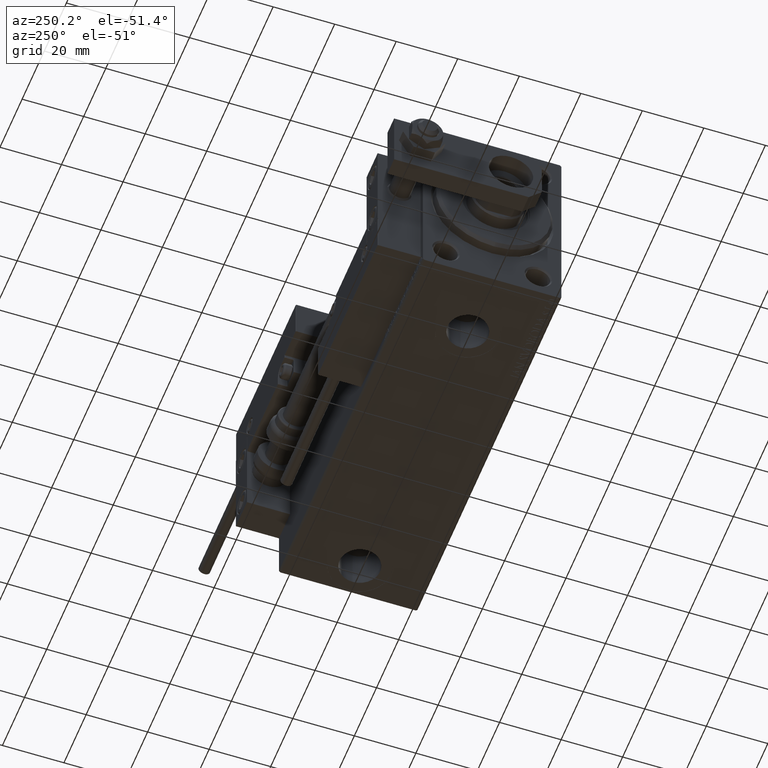
[diagram: clean part render]
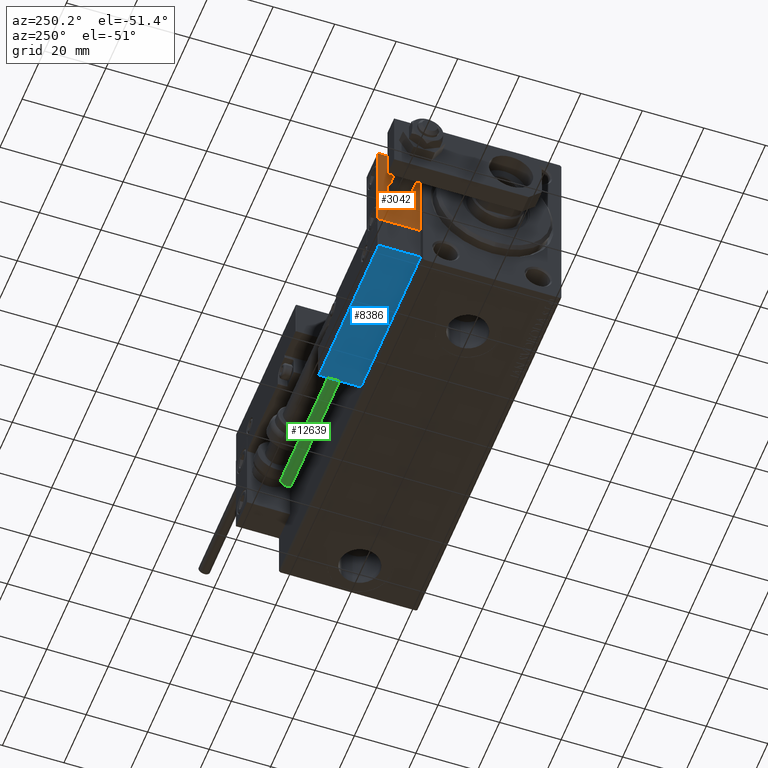
[diagram: same view with three faces highlighted in distinct colors, each labeled with its STEP entity id]
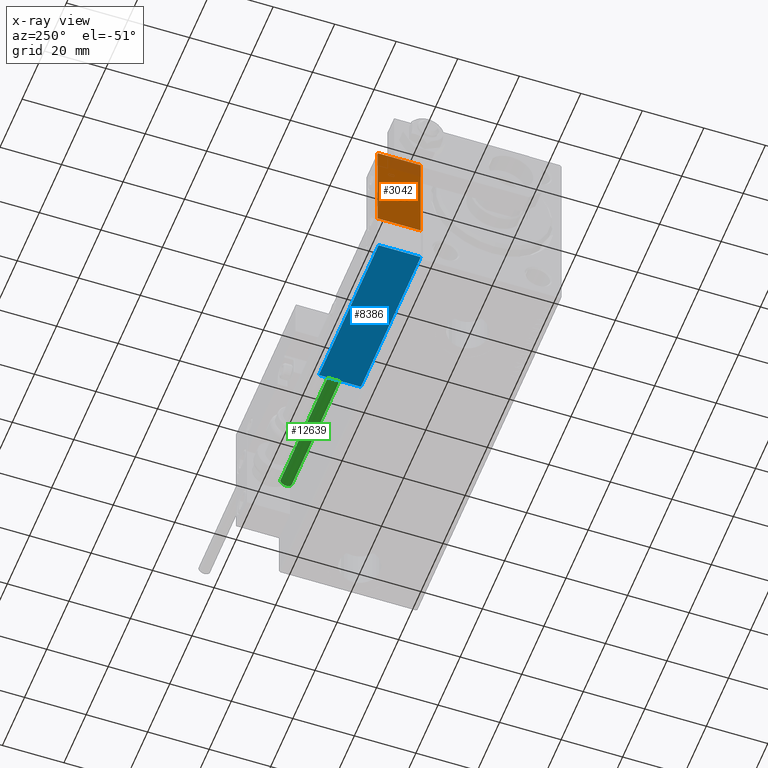
[diagram: x-ray of the same camera — body ghosted, the three highlighted faces saturated]
A machine part, auxiliary view with three faces highlighted in distinct colors.
The next image is the same camera in x-ray (body ghosted, the three faces saturated) — at least one of them is partly hidden behind the body in this view.
Their STEP definitions:

[orange] entity #3042 — the highlighted planar face has unit normal (1, 0, 0).
#191 = DIRECTION ( 'NONE',  ( 0.000000000000000000, 0.000000000000000000, -1.000000000000000000 ) ) ;
#2720 = VECTOR ( 'NONE', #191, 1000.000000000000000 ) ;
#3042 = ADVANCED_FACE ( 'NONE', ( #43395, #44194 ), #15733, .F. ) ;
#6367 = CARTESIAN_POINT ( 'NONE',  ( 10.00000000000000000, -7.000000000000000000, -16.00000000000000711 ) ) ;
#7182 = DIRECTION ( 'NONE',  ( -1.000000000000000000, 0.000000000000000000, 0.000000000000000000 ) ) ;
#8959 = DIRECTION ( 'NONE',  ( 0.000000000000000000, -1.000000000000000000, 0.000000000000000000 ) ) ;
#9910 = CIRCLE ( 'NONE', #19124, 4.000000000000000000 ) ;
#9937 = EDGE_CURVE ( 'NONE', #22927, #40895, #44837, .T. ) ;
#10574 = CARTESIAN_POINT ( 'NONE',  ( 10.00000000000000000, 7.000000000000000000, 15.99999999999999289 ) ) ;
#12146 = CARTESIAN_POINT ( 'NONE',  ( 10.00000000000000000, -7.000000000000000000, 15.99999999999999289 ) ) ;
#12499 = EDGE_LOOP ( 'NONE', ( #37616, #26865 ) ) ;
#12940 = ORIENTED_EDGE ( 'NONE', *, *, #13475, .F. ) ;
#13475 = EDGE_CURVE ( 'NONE', #27561, #51401, #29159, .T. ) ;
#14376 = CARTESIAN_POINT ( 'NONE',  ( 10.00000000000000000, 0.000000000000000000, 0.000000000000000000 ) ) ;
#15426 = DIRECTION ( 'NONE',  ( 0.000000000000000000, 0.000000000000000000, 1.000000000000000000 ) ) ;
#15733 = PLANE ( 'NONE',  #49188 ) ;
#15927 = CARTESIAN_POINT ( 'NONE',  ( 10.00000000000000000, 4.898587196589412829E-16, -4.000000000000000000 ) ) ;
#16790 = LINE ( 'NONE', #32502, #52328 ) ;
#17567 = VERTEX_POINT ( 'NONE', #44622 ) ;
#18126 = CARTESIAN_POINT ( 'NONE',  ( 10.00000000000000000, 7.000000000000000000, -16.00000000000000711 ) ) ;
#19124 = AXIS2_PLACEMENT_3D ( 'NONE', #14376, #7182, #15426 ) ;
#22927 = VERTEX_POINT ( 'NONE', #38940 ) ;
#23326 = EDGE_CURVE ( 'NONE', #51401, #40895, #16790, .T. ) ;
#23396 = CARTESIAN_POINT ( 'NONE',  ( 10.00000000000000000, 0.000000000000000000, 0.000000000000000000 ) ) ;
#23500 = EDGE_CURVE ( 'NONE', #17567, #37879, #9910, .T. ) ;
#26865 = ORIENTED_EDGE ( 'NONE', *, *, #28249, .T. ) ;
#27561 = VERTEX_POINT ( 'NONE', #10574 ) ;
#28249 = EDGE_CURVE ( 'NONE', #37879, #17567, #28469, .T. ) ;
#28469 = CIRCLE ( 'NONE', #47139, 4.000000000000000000 ) ;
#28632 = DIRECTION ( 'NONE',  ( 0.000000000000000000, 0.000000000000000000, -1.000000000000000000 ) ) ;
#29159 = LINE ( 'NONE', #32623, #51993 ) ;
#31427 = CARTESIAN_POINT ( 'NONE',  ( 10.00000000000000000, 0.000000000000000000, 0.000000000000000000 ) ) ;
#31947 = DIRECTION ( 'NONE',  ( -1.000000000000000000, 0.000000000000000000, -0.000000000000000000 ) ) ;
#31970 = DIRECTION ( 'NONE',  ( 0.000000000000000000, -1.000000000000000000, 0.000000000000000000 ) ) ;
#32502 = CARTESIAN_POINT ( 'NONE',  ( 10.00000000000000000, 7.000000000000000000, -16.00000000000000711 ) ) ;
#32623 = CARTESIAN_POINT ( 'NONE',  ( 10.00000000000000000, 7.000000000000000000, 15.99999999999999289 ) ) ;
#34325 = ORIENTED_EDGE ( 'NONE', *, *, #23326, .F. ) ;
#35100 = DIRECTION ( 'NONE',  ( 0.000000000000000000, 0.000000000000000000, 1.000000000000000000 ) ) ;
#37390 = ORIENTED_EDGE ( 'NONE', *, *, #49024, .T. ) ;
#37616 = ORIENTED_EDGE ( 'NONE', *, *, #23500, .T. ) ;
#37879 = VERTEX_POINT ( 'NONE', #15927 ) ;
#38940 = CARTESIAN_POINT ( 'NONE',  ( 10.00000000000000000, -7.000000000000000000, 15.99999999999999289 ) ) ;
#40895 = VERTEX_POINT ( 'NONE', #6367 ) ;
#43395 = FACE_BOUND ( 'NONE', #12499, .T. ) ;
#44194 = FACE_OUTER_BOUND ( 'NONE', #44765, .T. ) ;
#44622 = CARTESIAN_POINT ( 'NONE',  ( 10.00000000000000000, 0.000000000000000000, 4.000000000000000000 ) ) ;
#44765 = EDGE_LOOP ( 'NONE', ( #51987, #34325, #12940, #37390 ) ) ;
#44837 = LINE ( 'NONE', #12146, #2720 ) ;
#45654 = CARTESIAN_POINT ( 'NONE',  ( 10.00000000000000000, 7.000000000000000000, 15.99999999999999289 ) ) ;
#46978 = VECTOR ( 'NONE', #8959, 1000.000000000000000 ) ;
#47139 = AXIS2_PLACEMENT_3D ( 'NONE', #23396, #51325, #35100 ) ;
#48181 = DIRECTION ( 'NONE',  ( -0.000000000000000000, 0.000000000000000000, 1.000000000000000000 ) ) ;
#49024 = EDGE_CURVE ( 'NONE', #27561, #22927, #49908, .T. ) ;
#49188 = AXIS2_PLACEMENT_3D ( 'NONE', #31427, #31947, #48181 ) ;
#49908 = LINE ( 'NONE', #45654, #46978 ) ;
#51325 = DIRECTION ( 'NONE',  ( -1.000000000000000000, 0.000000000000000000, 0.000000000000000000 ) ) ;
#51401 = VERTEX_POINT ( 'NONE', #18126 ) ;
#51987 = ORIENTED_EDGE ( 'NONE', *, *, #9937, .T. ) ;
#51993 = VECTOR ( 'NONE', #28632, 1000.000000000000000 ) ;
#52328 = VECTOR ( 'NONE', #31970, 1000.000000000000000 ) ;

[blue] entity #8386 — the highlighted planar face has unit normal (0, 0, 1).
#228 = FACE_OUTER_BOUND ( 'NONE', #1249, .T. ) ;
#368 = DIRECTION ( 'NONE',  ( -1.000000000000000000, 6.424901762877062263E-17, 0.000000000000000000 ) ) ;
#1249 = EDGE_LOOP ( 'NONE', ( #36970, #51789, #27377, #48191 ) ) ;
#1754 = CARTESIAN_POINT ( 'NONE',  ( 27.00000000000006395, 20.00000000000001776, 13.70000000000000107 ) ) ;
#4084 = DIRECTION ( 'NONE',  ( -0.000000000000000000, -0.000000000000000000, -1.000000000000000000 ) ) ;
#4351 = LINE ( 'NONE', #36772, #51116 ) ;
#8386 = ADVANCED_FACE ( 'NONE', ( #228 ), #20151, .F. ) ;
#9404 = EDGE_CURVE ( 'NONE', #36048, #17529, #4351, .T. ) ;
#11484 = DIRECTION ( 'NONE',  ( -0.000000000000000000, -0.000000000000000000, -1.000000000000000000 ) ) ;
#11644 = DIRECTION ( 'NONE',  ( 1.000000000000000000, -6.424901762877063495E-17, 0.000000000000000000 ) ) ;
#13594 = EDGE_CURVE ( 'NONE', #48545, #42459, #42151, .T. ) ;
#13639 = CARTESIAN_POINT ( 'NONE',  ( -26.99999999999993605, 20.00000000000002132, 13.70000000000000107 ) ) ;
#14062 = CARTESIAN_POINT ( 'NONE',  ( 27.00000000000006395, 20.00000000000001776, 0.000000000000000000 ) ) ;
#15687 = VECTOR ( 'NONE', #11484, 1000.000000000000000 ) ;
#16034 = LINE ( 'NONE', #32259, #51952 ) ;
#16522 = LINE ( 'NONE', #32741, #15687 ) ;
#17529 = VERTEX_POINT ( 'NONE', #28654 ) ;
#19905 = EDGE_CURVE ( 'NONE', #48545, #17529, #16522, .T. ) ;
#20151 = PLANE ( 'NONE',  #31526 ) ;
#26506 = VECTOR ( 'NONE', #50663, 1000.000000000000000 ) ;
#27377 = ORIENTED_EDGE ( 'NONE', *, *, #46496, .T. ) ;
#28654 = CARTESIAN_POINT ( 'NONE',  ( -26.99999999999993605, 20.00000000000002132, 0.000000000000000000 ) ) ;
#31526 = AXIS2_PLACEMENT_3D ( 'NONE', #37136, #36372, #11644 ) ;
#32259 = CARTESIAN_POINT ( 'NONE',  ( 27.00000000000006395, 20.00000000000001776, 14.00000000000000000 ) ) ;
#32741 = CARTESIAN_POINT ( 'NONE',  ( -26.99999999999993605, 20.00000000000002132, 14.00000000000000000 ) ) ;
#33255 = CARTESIAN_POINT ( 'NONE',  ( 27.00000000000006395, 20.00000000000001776, 13.70000000000000107 ) ) ;
#36048 = VERTEX_POINT ( 'NONE', #14062 ) ;
#36372 = DIRECTION ( 'NONE',  ( -6.424901762877063495E-17, -1.000000000000000000, 0.000000000000000000 ) ) ;
#36772 = CARTESIAN_POINT ( 'NONE',  ( 27.00000000000006395, 20.00000000000001776, 0.000000000000000000 ) ) ;
#36970 = ORIENTED_EDGE ( 'NONE', *, *, #19905, .F. ) ;
#37136 = CARTESIAN_POINT ( 'NONE',  ( 27.00000000000006395, 20.00000000000001776, 14.00000000000000000 ) ) ;
#42151 = LINE ( 'NONE', #1754, #26506 ) ;
#42459 = VERTEX_POINT ( 'NONE', #33255 ) ;
#46496 = EDGE_CURVE ( 'NONE', #42459, #36048, #16034, .T. ) ;
#48191 = ORIENTED_EDGE ( 'NONE', *, *, #9404, .T. ) ;
#48545 = VERTEX_POINT ( 'NONE', #13639 ) ;
#50663 = DIRECTION ( 'NONE',  ( 1.000000000000000000, -6.424901762877063495E-17, -0.000000000000000000 ) ) ;
#51116 = VECTOR ( 'NONE', #368, 1000.000000000000000 ) ;
#51789 = ORIENTED_EDGE ( 'NONE', *, *, #13594, .T. ) ;
#51952 = VECTOR ( 'NONE', #4084, 1000.000000000000000 ) ;

[green] entity #12639 — the highlighted cylindrical surface (edge-blend (fillet) strip) has radius 1.9 mm, axis along (-1, 0, 0).
#809 = VERTEX_POINT ( 'NONE', #8392 ) ;
#2003 = VECTOR ( 'NONE', #8507, 1000.000000000000000 ) ;
#3209 = ORIENTED_EDGE ( 'NONE', *, *, #8957, .F. ) ;
#3421 = ORIENTED_EDGE ( 'NONE', *, *, #13425, .T. ) ;
#4081 = DIRECTION ( 'NONE',  ( -0.000000000000000000, -0.000000000000000000, -1.000000000000000000 ) ) ;
#4186 = DIRECTION ( 'NONE',  ( 1.000000000000000000, 0.000000000000000000, 0.000000000000000000 ) ) ;
#4273 = LINE ( 'NONE', #28199, #2003 ) ;
#5470 = CYLINDRICAL_SURFACE ( 'NONE', #45157, 1.899999999999999467 ) ;
#8392 = CARTESIAN_POINT ( 'NONE',  ( -1.899999999999999467, 0.000000000000000000, 48.00000000000000000 ) ) ;
#8507 = DIRECTION ( 'NONE',  ( -0.000000000000000000, -0.000000000000000000, -1.000000000000000000 ) ) ;
#8957 = EDGE_CURVE ( 'NONE', #16421, #30953, #52469, .T. ) ;
#9130 = CIRCLE ( 'NONE', #14251, 1.899999999999999467 ) ;
#9969 = DIRECTION ( 'NONE',  ( -0.000000000000000000, -0.000000000000000000, -1.000000000000000000 ) ) ;
#12639 = ADVANCED_FACE ( 'NONE', ( #17432 ), #5470, .T. ) ;
#13192 = DIRECTION ( 'NONE',  ( 0.000000000000000000, 0.000000000000000000, 1.000000000000000000 ) ) ;
#13425 = EDGE_CURVE ( 'NONE', #46453, #30953, #22254, .T. ) ;
#13763 = AXIS2_PLACEMENT_3D ( 'NONE', #48860, #13192, #4186 ) ;
#14251 = AXIS2_PLACEMENT_3D ( 'NONE', #20517, #29019, #20767 ) ;
#14410 = ORIENTED_EDGE ( 'NONE', *, *, #26902, .F. ) ;
#16421 = VERTEX_POINT ( 'NONE', #30532 ) ;
#17432 = FACE_OUTER_BOUND ( 'NONE', #48038, .T. ) ;
#20517 = CARTESIAN_POINT ( 'NONE',  ( 0.000000000000000000, 0.000000000000000000, 48.00000000000000000 ) ) ;
#20767 = DIRECTION ( 'NONE',  ( 1.000000000000000000, 0.000000000000000000, 0.000000000000000000 ) ) ;
#22254 = CIRCLE ( 'NONE', #13763, 1.899999999999999467 ) ;
#25665 = CARTESIAN_POINT ( 'NONE',  ( 0.000000000000000000, 0.000000000000000000, 48.00000000000000000 ) ) ;
#26902 = EDGE_CURVE ( 'NONE', #809, #16421, #9130, .T. ) ;
#28199 = CARTESIAN_POINT ( 'NONE',  ( -1.899999999999999467, 0.000000000000000000, 48.00000000000000000 ) ) ;
#29019 = DIRECTION ( 'NONE',  ( 0.000000000000000000, 0.000000000000000000, 1.000000000000000000 ) ) ;
#30532 = CARTESIAN_POINT ( 'NONE',  ( 1.899999999999999467, 2.326828918379970872E-16, 48.00000000000000000 ) ) ;
#30953 = VERTEX_POINT ( 'NONE', #47809 ) ;
#33656 = DIRECTION ( 'NONE',  ( -1.000000000000000000, 0.000000000000000000, 0.000000000000000000 ) ) ;
#35775 = VECTOR ( 'NONE', #4081, 1000.000000000000000 ) ;
#35977 = CARTESIAN_POINT ( 'NONE',  ( 1.899999999999999467, 2.326828918379970872E-16, 48.00000000000000000 ) ) ;
#44114 = ORIENTED_EDGE ( 'NONE', *, *, #49576, .T. ) ;
#45157 = AXIS2_PLACEMENT_3D ( 'NONE', #25665, #9969, #33656 ) ;
#46453 = VERTEX_POINT ( 'NONE', #51675 ) ;
#47809 = CARTESIAN_POINT ( 'NONE',  ( 1.899999999999999467, 2.326828918379970872E-16, 0.000000000000000000 ) ) ;
#48038 = EDGE_LOOP ( 'NONE', ( #3209, #14410, #44114, #3421 ) ) ;
#48860 = CARTESIAN_POINT ( 'NONE',  ( 0.000000000000000000, 0.000000000000000000, 0.000000000000000000 ) ) ;
#49576 = EDGE_CURVE ( 'NONE', #809, #46453, #4273, .T. ) ;
#51675 = CARTESIAN_POINT ( 'NONE',  ( -1.899999999999999467, 0.000000000000000000, 0.000000000000000000 ) ) ;
#52469 = LINE ( 'NONE', #35977, #35775 ) ;